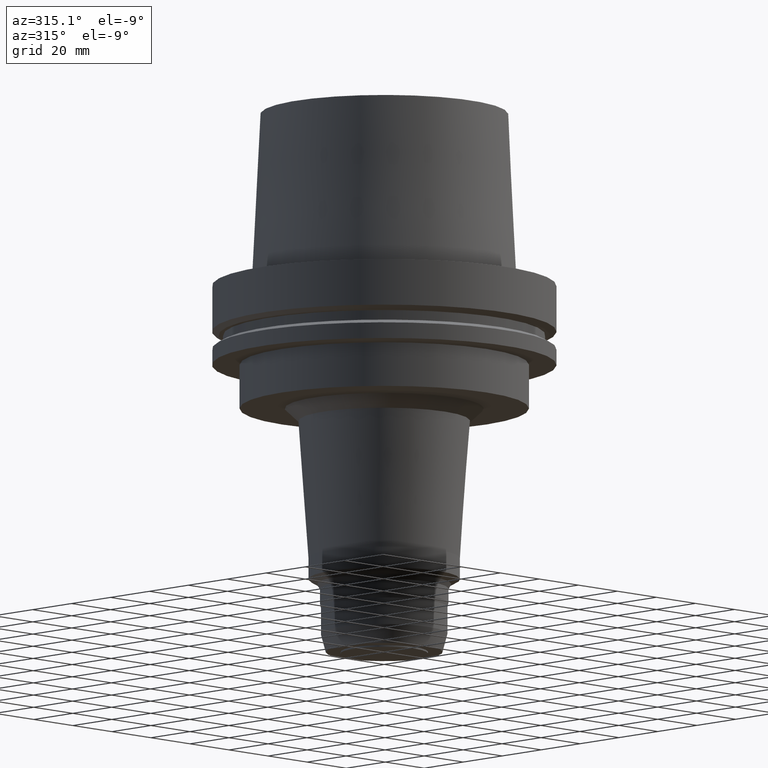
[diagram: clean part render]
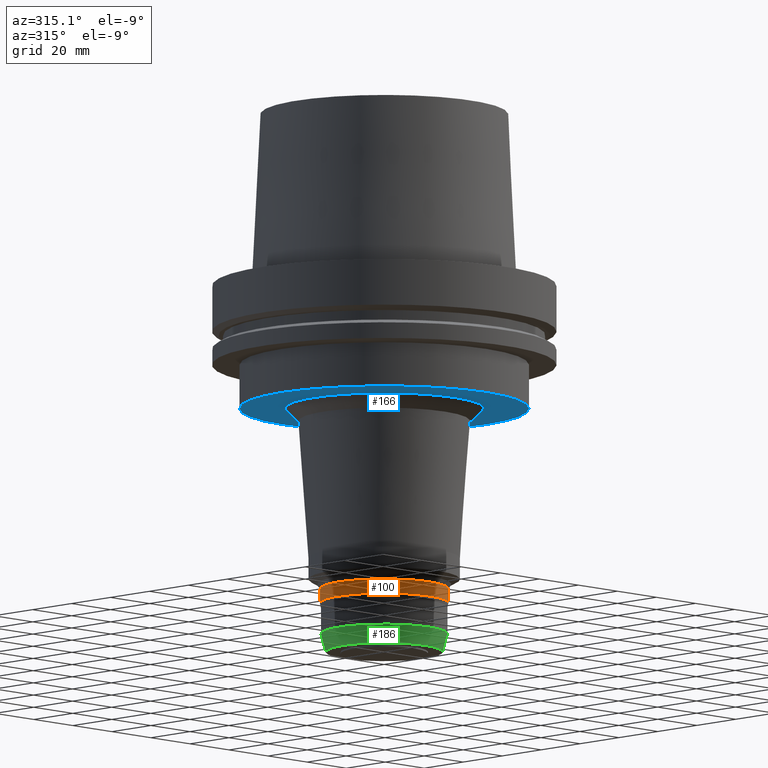
[diagram: same view with three faces highlighted in distinct colors, each labeled with its STEP entity id]
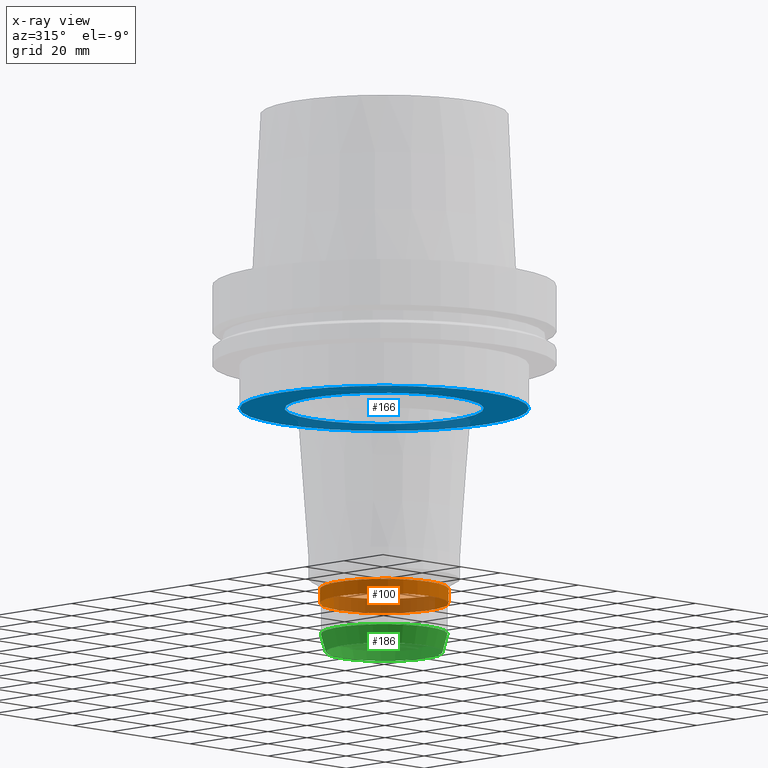
[diagram: x-ray of the same camera — body ghosted, the three highlighted faces saturated]
A machine part, auxiliary view with three faces highlighted in distinct colors.
The next image is the same camera in x-ray (body ghosted, the three faces saturated) — at least one of them is partly hidden behind the body in this view.
Their STEP definitions:

[orange] entity #100 — the highlighted cylindrical surface (bore or boss wall) has radius 23.35 mm, axis along (0, 0, -1).
#100=ADVANCED_FACE('Unnamed[1]',(#255,#256),#257,.T.);
#140=EDGE_CURVE('Unnamed[1]',#320,#320,#321,.T.);
#168=EDGE_CURVE('Unnamed[1]',#364,#364,#365,.T.);
#255=FACE_BOUND('',#469,.T.);
#256=FACE_BOUND('',#470,.T.);
#257=CYLINDRICAL_SURFACE('',#471,23.3500000000008);
#320=VERTEX_POINT('',#550);
#321=CIRCLE('',#551,23.3500000000008);
#364=VERTEX_POINT('',#606);
#365=CIRCLE('',#607,23.3500000000008);
#469=EDGE_LOOP('',(#708));
#470=EDGE_LOOP('',(#709));
#471=AXIS2_PLACEMENT_3D('',#710,#711,#712);
#550=CARTESIAN_POINT('',(6.81238564522116E-015,23.3500000000008,-111.254700538379));
#551=AXIS2_PLACEMENT_3D('',#782,#783,#784);
#606=CARTESIAN_POINT('',(7.13356760503331E-015,23.3500000000008,-116.5));
#607=AXIS2_PLACEMENT_3D('',#830,#831,#832);
#708=ORIENTED_EDGE('',*,*,#168,.F.);
#709=ORIENTED_EDGE('',*,*,#140,.T.);
#710=CARTESIAN_POINT('',(6.97297662512724E-015,1.39459532502545E-014,-113.877350269189));
#711=DIRECTION('',(6.12323399573677E-017,1.22464679914735E-016,-1.0));
#712=DIRECTION('',(-1.23259516440783E-032,1.0,1.22464679914735E-016));
#782=CARTESIAN_POINT('',(6.81238564522116E-015,1.36247712904423E-014,-111.254700538379));
#783=DIRECTION('',(6.12323399573677E-017,1.22464679914735E-016,-1.0));
#784=DIRECTION('',(-1.23259516440783E-032,1.0,1.22464679914735E-016));
#830=CARTESIAN_POINT('',(7.13356760503331E-015,1.42671352100666E-014,-116.5));
#831=DIRECTION('',(6.12323399573677E-017,1.22464679914735E-016,-1.0));
#832=DIRECTION('',(-1.23259516440783E-032,1.0,1.22464679914735E-016));

[blue] entity #166 — the highlighted planar face has unit normal (0, 0, -1).
#90=EDGE_CURVE('Unnamed[1]',#240,#240,#241,.T.);
#142=EDGE_CURVE('Unnamed[1]',#323,#323,#324,.T.);
#166=ADVANCED_FACE('Unnamed[1]',(#360,#361),#362,.T.);
#240=VERTEX_POINT('',#450);
#241=CIRCLE('',#451,52.4999999999998);
#323=VERTEX_POINT('',#554);
#324=CIRCLE('',#555,36.1495693378047);
#360=FACE_BOUND('',#601,.T.);
#361=FACE_OUTER_BOUND('',#602,.T.);
#362=PLANE('',#603);
#450=CARTESIAN_POINT('',(2.75545529808155E-015,52.4999999999998,-45.0));
#451=AXIS2_PLACEMENT_3D('',#692,#693,#694);
#554=CARTESIAN_POINT('',(2.75545529808155E-015,36.1495693378047,-45.0));
#555=AXIS2_PLACEMENT_3D('',#785,#786,#787);
#601=EDGE_LOOP('',(#825));
#602=EDGE_LOOP('',(#826));
#603=AXIS2_PLACEMENT_3D('',#827,#828,#829);
#692=CARTESIAN_POINT('',(2.75545529808155E-015,5.51091059616309E-015,-45.0));
#693=DIRECTION('',(6.12323399573677E-017,1.22464679914735E-016,-1.0));
#694=DIRECTION('',(-1.23259516440783E-032,1.0,1.22464679914735E-016));
#785=CARTESIAN_POINT('',(2.75545529808155E-015,5.51091059616309E-015,-45.0));
#786=DIRECTION('',(6.12323399573677E-017,1.22464679914735E-016,-1.0));
#787=DIRECTION('',(-1.23259516440783E-032,1.0,1.22464679914735E-016));
#825=ORIENTED_EDGE('',*,*,#142,.F.);
#826=ORIENTED_EDGE('',*,*,#90,.T.);
#827=CARTESIAN_POINT('',(2.75545529808155E-015,44.3247846689022,-45.0));
#828=DIRECTION('',(6.12323399573677E-017,1.22464679914735E-016,-1.0));
#829=DIRECTION('',(-1.23259516440783E-032,1.0,1.22464679914735E-016));

[green] entity #186 — the highlighted conical surface has half-angle 15 deg.
#179=EDGE_CURVE('Unnamed[1]',#382,#382,#383,.T.);
#183=EDGE_CURVE('Unnamed[1]',#388,#388,#389,.T.);
#186=ADVANCED_FACE('Unnamed[1]',(#392,#393),#394,.T.);
#382=VERTEX_POINT('',#628);
#383=CIRCLE('',#629,21.2315353299552);
#388=VERTEX_POINT('',#636);
#389=CIRCLE('',#637,23.0000000000004);
#392=FACE_BOUND('',#641,.T.);
#393=FACE_BOUND('',#642,.T.);
#394=CONICAL_SURFACE('',#643,22.1157676649778,0.261799387799154);
#628=CARTESIAN_POINT('',(8.22962649027018E-015,21.2315353299552,-134.399999999999));
#629=AXIS2_PLACEMENT_3D('',#851,#852,#853);
#636=CARTESIAN_POINT('',(7.8254930465516E-015,23.0000000000004,-127.8));
#637=AXIS2_PLACEMENT_3D('',#857,#858,#859);
#641=EDGE_LOOP('',(#861));
#642=EDGE_LOOP('',(#862));
#643=AXIS2_PLACEMENT_3D('',#863,#864,#865);
#851=CARTESIAN_POINT('',(8.22962649027018E-015,1.64592529805404E-014,-134.399999999999));
#852=DIRECTION('',(6.12323399573677E-017,1.22464679914735E-016,-1.0));
#853=DIRECTION('',(-1.23259516440783E-032,1.0,1.22464679914735E-016));
#857=CARTESIAN_POINT('',(7.8254930465516E-015,1.56509860931032E-014,-127.8));
#858=DIRECTION('',(6.12323399573677E-017,1.22464679914735E-016,-1.0));
#859=DIRECTION('',(-1.23259516440783E-032,1.0,1.22464679914735E-016));
#861=ORIENTED_EDGE('',*,*,#179,.F.);
#862=ORIENTED_EDGE('',*,*,#183,.T.);
#863=CARTESIAN_POINT('',(8.02755976841089E-015,1.60551195368218E-014,-131.1));
#864=DIRECTION('',(-6.12323399573677E-017,-1.22464679914735E-016,1.0));
#865=DIRECTION('',(-1.23259516440783E-032,1.0,1.22464679914735E-016));